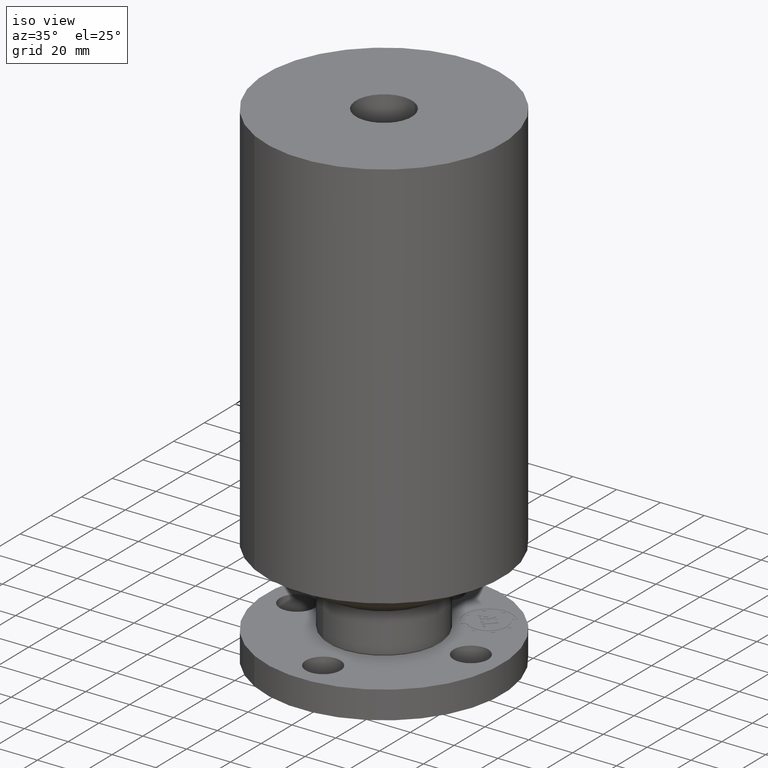
[diagram: clean part render]
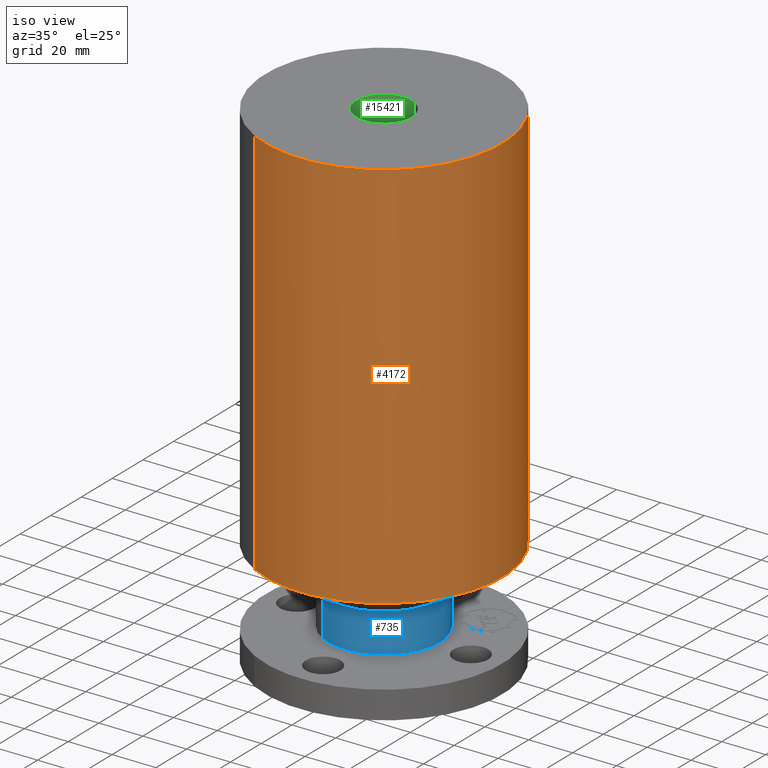
[diagram: same view with three faces highlighted in distinct colors, each labeled with its STEP entity id]
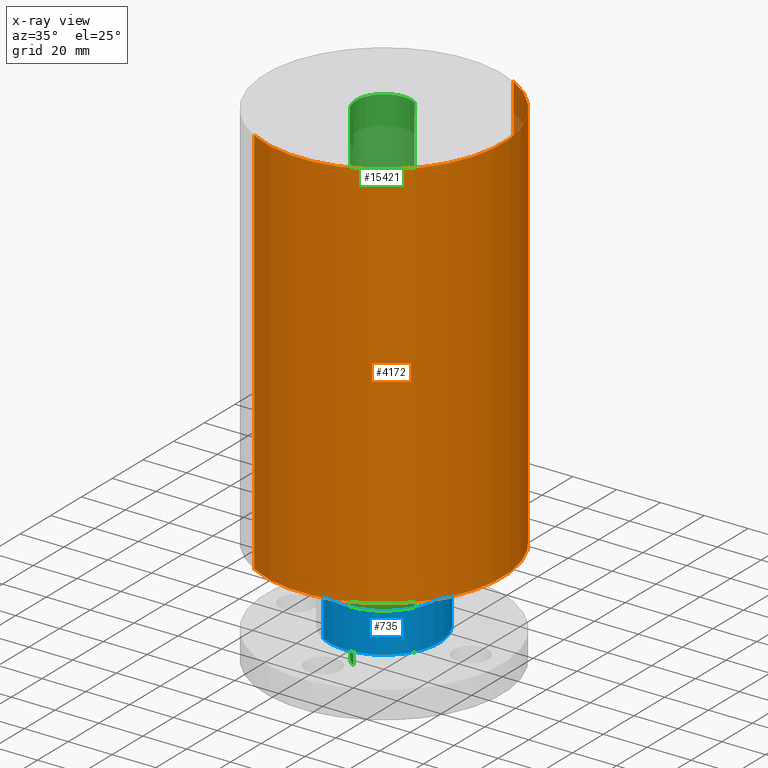
[diagram: x-ray of the same camera — body ghosted, the three highlighted faces saturated]
A machine part, iso view with three faces highlighted in distinct colors.
The next image is the same camera in x-ray (body ghosted, the three faces saturated) — at least one of them is partly hidden behind the body in this view.
Their STEP definitions:

[orange] entity #4172 — the highlighted cylindrical surface (partial cylindrical patch) has radius 53.975 mm, axis along (0, 0, -1).
#213=AXIS2_PLACEMENT_3D('Cylinder Axis2P3D',#210,#211,#212) ;
#1275=AXIS2_PLACEMENT_3D('Circle Axis2P3D',#1273,#1274,$) ;
#4156=AXIS2_PLACEMENT_3D('Circle Axis2P3D',#4154,#4155,$) ;
#210=CARTESIAN_POINT('Axis2P3D Location',(0.,0.,4.43750000002)) ;
#1270=CARTESIAN_POINT('Vertex',(1.01877926954,1.86486294402,1.89701905285)) ;
#1273=CARTESIAN_POINT('Axis2P3D Location',(0.,0.,1.89701905285)) ;
#1277=CARTESIAN_POINT('Vertex',(-1.01877926954,-1.86486294402,1.89701905285)) ;
#4147=CARTESIAN_POINT('Line Origine',(1.01877926954,1.86486294402,5.41725952644)) ;
#4151=CARTESIAN_POINT('Vertex',(1.01877926954,1.86486294402,8.93750000004)) ;
#4154=CARTESIAN_POINT('Axis2P3D Location',(0.,0.,8.93750000004)) ;
#4158=CARTESIAN_POINT('Vertex',(-1.01877926954,-1.86486294402,8.93750000004)) ;
#4161=CARTESIAN_POINT('Line Origine',(-1.01877926954,-1.86486294402,5.41725952644)) ;
#211=DIRECTION('Axis2P3D Direction',(0.,0.,-0.0393700787402)) ;
#212=DIRECTION('Axis2P3D XDirection',(-0.0188750212049,-0.0345504945626,0.)) ;
#1274=DIRECTION('Axis2P3D Direction',(-0.,0.,0.0393700787402)) ;
#4148=DIRECTION('Vector Direction',(0.,0.,-0.0393700787402)) ;
#4155=DIRECTION('Axis2P3D Direction',(0.,0.,-0.0393700787402)) ;
#4162=DIRECTION('Vector Direction',(0.,0.,-0.0393700787402)) ;
#4149=VECTOR('Line Direction',#4148,0.0393700787402) ;
#4163=VECTOR('Line Direction',#4162,0.0393700787402) ;
#4167=ORIENTED_EDGE('',*,*,#1279,.F.) ;
#4168=ORIENTED_EDGE('',*,*,#4153,.T.) ;
#4169=ORIENTED_EDGE('',*,*,#4160,.T.) ;
#4170=ORIENTED_EDGE('',*,*,#4165,.F.) ;
#4172=ADVANCED_FACE('PartBody',(#4171),#214,.T.) ;
#1276=CIRCLE('generated circle',#1275,2.12500000001) ;
#4157=CIRCLE('generated circle',#4156,2.12500000001) ;
#214=CYLINDRICAL_SURFACE('generated cylinder',#213,2.12500000001) ;
#1279=EDGE_CURVE('',#1271,#1278,#1276,.F.) ;
#4153=EDGE_CURVE('',#1271,#4152,#4150,.F.) ;
#4160=EDGE_CURVE('',#4152,#4159,#4157,.T.) ;
#4165=EDGE_CURVE('',#1278,#4159,#4164,.F.) ;
#4166=EDGE_LOOP('',(#4167,#4168,#4169,#4170)) ;
#4171=FACE_OUTER_BOUND('',#4166,.T.) ;
#4150=LINE('Line',#4147,#4149) ;
#4164=LINE('Line',#4161,#4163) ;
#1271=VERTEX_POINT('',#1270) ;
#1278=VERTEX_POINT('',#1277) ;
#4152=VERTEX_POINT('',#4151) ;
#4159=VERTEX_POINT('',#4158) ;

[blue] entity #735 — the highlighted cylindrical surface (partial cylindrical patch) has radius 25.4 mm, axis along (0, 0, -1).
#497=AXIS2_PLACEMENT_3D('Circle Axis2P3D',#495,#496,$) ;
#708=AXIS2_PLACEMENT_3D('Cylinder Axis2P3D',#705,#706,#707) ;
#719=AXIS2_PLACEMENT_3D('Circle Axis2P3D',#717,#718,$) ;
#492=CARTESIAN_POINT('Vertex',(0.479425538606,0.877582561894,0.538480762116)) ;
#495=CARTESIAN_POINT('Axis2P3D Location',(0.,0.,0.538480762116)) ;
#499=CARTESIAN_POINT('Vertex',(-0.479425538606,-0.877582561894,0.538480762116)) ;
#705=CARTESIAN_POINT('Axis2P3D Location',(0.,0.,4.43750000002)) ;
#710=CARTESIAN_POINT('Line Origine',(0.479425538606,0.877582561894,0.89299038106)) ;
#714=CARTESIAN_POINT('Vertex',(0.479425538606,0.877582561894,1.2475)) ;
#717=CARTESIAN_POINT('Axis2P3D Location',(0.,0.,1.2475)) ;
#721=CARTESIAN_POINT('Vertex',(-0.479425538606,-0.877582561894,1.2475)) ;
#724=CARTESIAN_POINT('Line Origine',(-0.479425538606,-0.877582561894,0.89299038106)) ;
#496=DIRECTION('Axis2P3D Direction',(-0.,0.,0.0393700787402)) ;
#706=DIRECTION('Axis2P3D Direction',(0.,0.,-0.0393700787402)) ;
#707=DIRECTION('Axis2P3D XDirection',(-0.0188750212049,-0.0345504945626,0.)) ;
#711=DIRECTION('Vector Direction',(0.,0.,-0.0393700787402)) ;
#718=DIRECTION('Axis2P3D Direction',(0.,0.,-0.0393700787402)) ;
#725=DIRECTION('Vector Direction',(0.,0.,-0.0393700787402)) ;
#712=VECTOR('Line Direction',#711,0.0393700787402) ;
#726=VECTOR('Line Direction',#725,0.0393700787402) ;
#730=ORIENTED_EDGE('',*,*,#501,.F.) ;
#731=ORIENTED_EDGE('',*,*,#716,.T.) ;
#732=ORIENTED_EDGE('',*,*,#723,.T.) ;
#733=ORIENTED_EDGE('',*,*,#728,.F.) ;
#735=ADVANCED_FACE('PartBody',(#734),#709,.T.) ;
#498=CIRCLE('generated circle',#497,1.) ;
#720=CIRCLE('generated circle',#719,1.) ;
#709=CYLINDRICAL_SURFACE('generated cylinder',#708,1.) ;
#501=EDGE_CURVE('',#493,#500,#498,.F.) ;
#716=EDGE_CURVE('',#493,#715,#713,.F.) ;
#723=EDGE_CURVE('',#715,#722,#720,.T.) ;
#728=EDGE_CURVE('',#500,#722,#727,.F.) ;
#729=EDGE_LOOP('',(#730,#731,#732,#733)) ;
#734=FACE_OUTER_BOUND('',#729,.T.) ;
#713=LINE('Line',#710,#712) ;
#727=LINE('Line',#724,#726) ;
#493=VERTEX_POINT('',#492) ;
#500=VERTEX_POINT('',#499) ;
#715=VERTEX_POINT('',#714) ;
#722=VERTEX_POINT('',#721) ;

[green] entity #15421 — the highlighted cylindrical surface (edge-blend (fillet) strip) has radius 12.7 mm, axis along (0, 0, -1).
#14944=AXIS2_PLACEMENT_3D('Circle Axis2P3D',#14942,#14943,$) ;
#15382=AXIS2_PLACEMENT_3D('Cylinder Axis2P3D',#15379,#15380,#15381) ;
#15412=AXIS2_PLACEMENT_3D('Circle Axis2P3D',#15410,#15411,$) ;
#14942=CARTESIAN_POINT('Axis2P3D Location',(0.,0.,8.93750000004)) ;
#14946=CARTESIAN_POINT('Vertex',(-0.239712769303,-0.438791280947,8.93750000004)) ;
#14948=CARTESIAN_POINT('Vertex',(0.239712769303,0.438791280947,8.93750000004)) ;
#15379=CARTESIAN_POINT('Axis2P3D Location',(0.,0.,4.43750000002)) ;
#15388=CARTESIAN_POINT('Vertex',(-0.239712769303,-0.438791280947,0.)) ;
#15390=CARTESIAN_POINT('Vertex',(0.239712769303,0.438791280947,0.)) ;
#15393=CARTESIAN_POINT('Line Origine',(-0.239712769303,-0.438791280947,4.46875000002)) ;
#15398=CARTESIAN_POINT('Line Origine',(0.239712769303,0.438791280947,4.46875000002)) ;
#15410=CARTESIAN_POINT('Axis2P3D Location',(0.,0.,0.)) ;
#14943=DIRECTION('Axis2P3D Direction',(0.,0.,-0.0393700787402)) ;
#15380=DIRECTION('Axis2P3D Direction',(0.,0.,-0.0393700787402)) ;
#15381=DIRECTION('Axis2P3D XDirection',(-0.0188750212049,-0.0345504945626,0.)) ;
#15394=DIRECTION('Vector Direction',(0.,0.,-0.0393700787402)) ;
#15399=DIRECTION('Vector Direction',(0.,0.,-0.0393700787402)) ;
#15411=DIRECTION('Axis2P3D Direction',(0.,0.,-0.0393700787402)) ;
#15395=VECTOR('Line Direction',#15394,0.0393700787402) ;
#15400=VECTOR('Line Direction',#15399,0.0393700787402) ;
#15416=ORIENTED_EDGE('',*,*,#15414,.F.) ;
#15417=ORIENTED_EDGE('',*,*,#15402,.F.) ;
#15418=ORIENTED_EDGE('',*,*,#14950,.F.) ;
#15419=ORIENTED_EDGE('',*,*,#15397,.T.) ;
#15421=ADVANCED_FACE('PartBody',(#15420),#15383,.F.) ;
#14945=CIRCLE('generated circle',#14944,0.500000000002) ;
#15413=CIRCLE('generated circle',#15412,0.500000000002) ;
#15383=CYLINDRICAL_SURFACE('generated cylinder',#15382,0.500000000002) ;
#14950=EDGE_CURVE('',#14947,#14949,#14945,.T.) ;
#15397=EDGE_CURVE('',#14947,#15389,#15396,.T.) ;
#15402=EDGE_CURVE('',#14949,#15391,#15401,.T.) ;
#15414=EDGE_CURVE('',#15391,#15389,#15413,.F.) ;
#15415=EDGE_LOOP('',(#15416,#15417,#15418,#15419)) ;
#15420=FACE_OUTER_BOUND('',#15415,.T.) ;
#15396=LINE('Line',#15393,#15395) ;
#15401=LINE('Line',#15398,#15400) ;
#14947=VERTEX_POINT('',#14946) ;
#14949=VERTEX_POINT('',#14948) ;
#15389=VERTEX_POINT('',#15388) ;
#15391=VERTEX_POINT('',#15390) ;